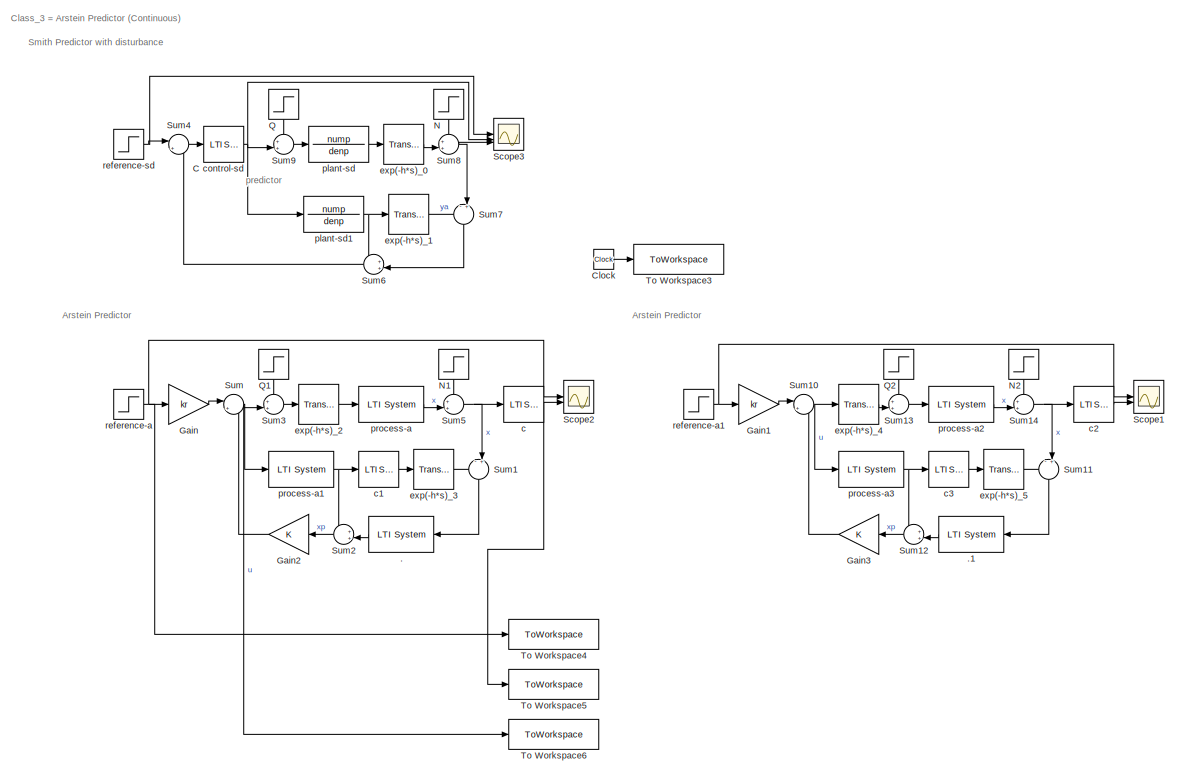
[diagram: root canvas - part 1/2, full width, top band]
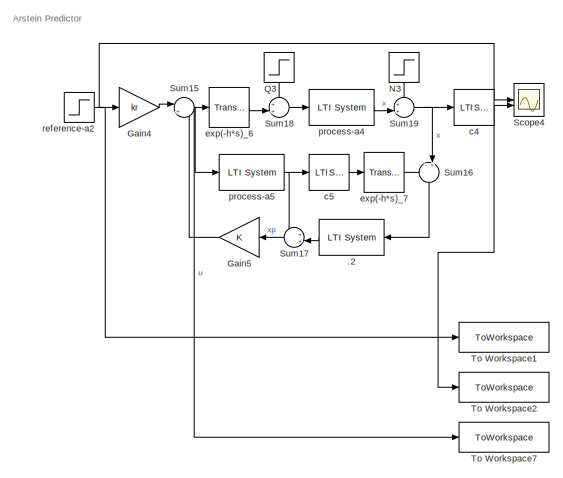
[diagram: root canvas - part 2/2, bottom left region]
MODEL slx_eae92babaa04
KIND model
CONFIG AbsTol = auto
CONFIG EnableMultiTasking = off
CONFIG FixedStep = auto
CONFIG MaxStep = auto
CONFIG MinStep = auto
CONFIG RelTol = 1e-3
CONFIG SampleTimeConstraint = Unconstrained
CONFIG SolverName = VariableStepAuto
CONFIG StartTime = 0.0
CONFIG StopTime = Tsim
BLOCK [Reference] .  REF=cstblocks/LTI System
  SourceBlock = cstblocks/LTI System
  SourceType = LTI Block
BLOCK [Reference] .1  REF=cstblocks/LTI System
  SourceBlock = cstblocks/LTI System
  SourceType = LTI Block
BLOCK [Reference] .2  REF=cstblocks/LTI System
  SourceBlock = cstblocks/LTI System
  SourceType = LTI Block
BLOCK [Reference] C control-sd  REF=cstblocks/LTI System
  SourceBlock = cstblocks/LTI System
  SourceType = LTI Block
BLOCK [Clock] Clock
BLOCK [Gain] Gain
  Gain = kr
BLOCK [Gain] Gain1
  Gain = kr
BLOCK [Gain] Gain2
  Gain = K
  NameLocation = top
BLOCK [Gain] Gain3
  Gain = K
  NameLocation = top
BLOCK [Gain] Gain4
  Gain = kr
BLOCK [Gain] Gain5
  Gain = K
  NameLocation = top
BLOCK [Step] N
  After = 0.2
  NameLocation = left
  SampleTime = 0
  Time = 20
BLOCK [Step] N1
  After = 0
  NameLocation = left
  SampleTime = 0
  Time = 0
BLOCK [Step] N2
  After = 0.2
  NameLocation = left
  SampleTime = 0
  Time = 20
BLOCK [Step] N3
  After = 0.2
  NameLocation = left
  SampleTime = 0
  Time = 20
BLOCK [Step] Q
  After = 0.2
  NameLocation = left
  SampleTime = 0
  Time = 10
BLOCK [Step] Q1
  After = 0
  NameLocation = left
  SampleTime = 0
  Time = 0
BLOCK [Step] Q2
  After = 0.2
  NameLocation = left
  SampleTime = 0
  Time = 10
BLOCK [Step] Q3
  After = 0.2
  NameLocation = left
  SampleTime = 0
  Time = 10
BLOCK [Scope] Scope1
  Floating = off
  NumInputPorts = 2
  ScopeSpecificationString = Simulink.scopes.TimeScopeBlockCfg('CurrentConfiguration', extmgr.ConfigurationSet(extmgr.Configuration('Core','General UI',true,'FigureColor',[1 1 1]),extmgr.Configuration('Core','Source UI',true),extmgr.Configuration('Sources','WiredSimulink',true),extmgr.Configuration('Visuals','Time Domain',true,'SerializedDisplays',{struct('MinYLimReal','-0.14829','MaxYLimReal','1.33465','YLabelReal','','MinYL...<+1820ch>
BLOCK [Scope] Scope2
  Floating = off
  NumInputPorts = 2
  ScopeSpecificationString = Simulink.scopes.TimeScopeBlockCfg('CurrentConfiguration', extmgr.ConfigurationSet(extmgr.Configuration('Core','General UI',true,'FigureColor',[1 1 1]),extmgr.Configuration('Core','Source UI',true),extmgr.Configuration('Sources','WiredSimulink',true,'DataLoggingVariableName','ScopeData1'),extmgr.Configuration('Visuals','Time Domain',true,'SerializedDisplays',{struct('MinYLimReal','-0.19543','MaxYLi...<+1851ch>
BLOCK [Scope] Scope3
  Floating = off
  NumInputPorts = 3
  ScopeSpecificationString = Simulink.scopes.TimeScopeBlockCfg('CurrentConfiguration', extmgr.ConfigurationSet(extmgr.Configuration('Core','General UI',true,'FigureColor',[1 1 1]),extmgr.Configuration('Core','Source UI',true),extmgr.Configuration('Sources','WiredSimulink',true,'DataLoggingVariableName','ScopeData1'),extmgr.Configuration('Visuals','Time Domain',true,'SerializedDisplays',{struct('MinYLimReal','-1.53069','MaxYLi...<+1874ch>
BLOCK [Scope] Scope4
  Floating = off
  NumInputPorts = 2
  ScopeSpecificationString = Simulink.scopes.TimeScopeBlockCfg('CurrentConfiguration', extmgr.ConfigurationSet(extmgr.Configuration('Core','General UI',true,'FigureColor',[1 1 1]),extmgr.Configuration('Core','Source UI',true),extmgr.Configuration('Sources','WiredSimulink',true,'DataLoggingVariableName','ScopeData1'),extmgr.Configuration('Visuals','Time Domain',true,'SerializedDisplays',{struct('MinYLimReal','-0.19543','MaxYLi...<+1851ch>
BLOCK [Sum] Sum
  Inputs = |+-
BLOCK [Sum] Sum1
  Inputs = -+|
  NameLocation = left
BLOCK [Sum] Sum10
  Inputs = |+-
BLOCK [Sum] Sum11
  Inputs = -+|
  NameLocation = left
BLOCK [Sum] Sum12
  Inputs = ++|
  NameLocation = top
BLOCK [Sum] Sum13
  Inputs = ++|
BLOCK [Sum] Sum14
  Inputs = ++|
BLOCK [Sum] Sum15
  Inputs = |+-
BLOCK [Sum] Sum16
  Inputs = -+|
  NameLocation = left
BLOCK [Sum] Sum17
  Inputs = ++|
  NameLocation = top
BLOCK [Sum] Sum18
  Inputs = ++|
BLOCK [Sum] Sum19
  Inputs = ++|
BLOCK [Sum] Sum2
  Inputs = ++|
  NameLocation = top
BLOCK [Sum] Sum3
  Inputs = ++|
BLOCK [Sum] Sum4
  Inputs = |+-
BLOCK [Sum] Sum5
  Inputs = ++|
BLOCK [Sum] Sum6
  Inputs = ++|
  NameLocation = top
BLOCK [Sum] Sum7
  Inputs = -+|
  NameLocation = left
BLOCK [Sum] Sum8
  Inputs = ++|
BLOCK [Sum] Sum9
  Inputs = ++|
BLOCK [ToWorkspace] To Workspace1
  FixptAsFi = on
  MaxDataPoints = inf
  SampleTime = -1
  VariableName = ap_u1
BLOCK [ToWorkspace] To Workspace2
  FixptAsFi = on
  MaxDataPoints = inf
  SampleTime = -1
  VariableName = ap_y1
BLOCK [ToWorkspace] To Workspace3
  FixptAsFi = on
  MaxDataPoints = inf
  SampleTime = -1
  VariableName = ap_time
BLOCK [ToWorkspace] To Workspace4
  FixptAsFi = on
  MaxDataPoints = inf
  SampleTime = -1
  VariableName = ap_u
BLOCK [ToWorkspace] To Workspace5
  FixptAsFi = on
  MaxDataPoints = inf
  SampleTime = -1
  VariableName = ap_y
BLOCK [ToWorkspace] To Workspace6
  FixptAsFi = on
  MaxDataPoints = inf
  SampleTime = -1
  VariableName = ap_c
BLOCK [ToWorkspace] To Workspace7
  FixptAsFi = on
  MaxDataPoints = inf
  SampleTime = -1
  VariableName = ap_c1
BLOCK [Reference] c  REF=cstblocks/LTI System
  SourceBlock = cstblocks/LTI System
  SourceType = LTI Block
BLOCK [Reference] c1  REF=cstblocks/LTI System
  SourceBlock = cstblocks/LTI System
  SourceType = LTI Block
BLOCK [Reference] c2  REF=cstblocks/LTI System
  SourceBlock = cstblocks/LTI System
  SourceType = LTI Block
BLOCK [Reference] c3  REF=cstblocks/LTI System
  SourceBlock = cstblocks/LTI System
  SourceType = LTI Block
BLOCK [Reference] c4  REF=cstblocks/LTI System
  SourceBlock = cstblocks/LTI System
  SourceType = LTI Block
BLOCK [Reference] c5  REF=cstblocks/LTI System
  SourceBlock = cstblocks/LTI System
  SourceType = LTI Block
BLOCK [TransportDelay] exp(-h*s)_0
  DelayTime = h
BLOCK [TransportDelay] exp(-h*s)_1
  DelayTime = h
BLOCK [TransportDelay] exp(-h*s)_2
  DelayTime = h
BLOCK [TransportDelay] exp(-h*s)_3
  DelayTime = h
BLOCK [TransportDelay] exp(-h*s)_4
  DelayTime = h
BLOCK [TransportDelay] exp(-h*s)_5
  DelayTime = h
BLOCK [TransportDelay] exp(-h*s)_6
  DelayTime = h
BLOCK [TransportDelay] exp(-h*s)_7
  DelayTime = h
BLOCK [TransferFcn] plant-sd
  Denominator = denp
  Numerator = nump
BLOCK [TransferFcn] plant-sd1
  Denominator = denp
  Numerator = nump
BLOCK [Reference] process-a  REF=cstblocks/LTI System
  SourceBlock = cstblocks/LTI System
  SourceType = LTI Block
BLOCK [Reference] process-a1  REF=cstblocks/LTI System
  SourceBlock = cstblocks/LTI System
  SourceType = LTI Block
BLOCK [Reference] process-a2  REF=cstblocks/LTI System
  SourceBlock = cstblocks/LTI System
  SourceType = LTI Block
BLOCK [Reference] process-a3  REF=cstblocks/LTI System
  SourceBlock = cstblocks/LTI System
  SourceType = LTI Block
BLOCK [Reference] process-a4  REF=cstblocks/LTI System
  SourceBlock = cstblocks/LTI System
  SourceType = LTI Block
BLOCK [Reference] process-a5  REF=cstblocks/LTI System
  SourceBlock = cstblocks/LTI System
  SourceType = LTI Block
BLOCK [Step] reference-a
  SampleTime = 0
  Time = 0
BLOCK [Step] reference-a1
  SampleTime = 0
  Time = 0
BLOCK [Step] reference-a2
  SampleTime = 0
  Time = 0
BLOCK [Step] reference-sd
  SampleTime = 0
  Time = 0
ANNOTATION (root): Arstein Predictor
ANNOTATION (root): Class_3 = Arstein Predictor (Continuous)
ANNOTATION (root): Smith Predictor with disturbance
ANNOTATION (root): predictor
LINE .1:1 -> Sum12:2
LINE .2:1 -> Sum17:2
LINE .:1 -> Sum2:2
NET C control-sd:1 -> Scope3:2, Sum9:2, plant-sd1:1
LINE Clock:1 -> To Workspace3:1
LINE Gain1:1 -> Sum10:1
LINE Gain2:1 -> Sum:2
LINE Gain3:1 -> Sum10:2
LINE Gain4:1 -> Sum15:1
LINE Gain5:1 -> Sum15:2
LINE Gain:1 -> Sum:1
LINE N1:1 -> Sum5:1
LINE N2:1 -> Sum14:1
LINE N3:1 -> Sum19:1
LINE N:1 -> Sum8:1
LINE Q1:1 -> Sum3:1
LINE Q2:1 -> Sum13:1
LINE Q3:1 -> Sum18:1
LINE Q:1 -> Sum9:1
NET Sum10:1 -> exp(-h*s)_4:1, process-a3:1
LINE Sum11:1 -> .1:1
LINE Sum12:1 -> Gain3:1
LINE Sum13:1 -> process-a2:1
NET Sum14:1 -> Sum11:2, c2:1
NET Sum15:1 -> To Workspace7:1, exp(-h*s)_6:1, process-a5:1
LINE Sum16:1 -> .2:1
LINE Sum17:1 -> Gain5:1
LINE Sum18:1 -> process-a4:1
NET Sum19:1 -> Sum16:2, c4:1
LINE Sum1:1 -> .:1
LINE Sum2:1 -> Gain2:1
LINE Sum3:1 -> exp(-h*s)_2:1
LINE Sum4:1 -> C control-sd:1
NET Sum5:1 -> Sum1:2, c:1
LINE Sum6:1 -> Sum4:2
LINE Sum7:1 -> Sum6:2
NET Sum8:1 -> Scope3:3, Sum7:2
LINE Sum9:1 -> plant-sd:1
NET Sum:1 -> Sum3:2, To Workspace6:1, process-a1:1
LINE c1:1 -> exp(-h*s)_3:1
LINE c2:1 -> Scope1:2
LINE c3:1 -> exp(-h*s)_5:1
NET c4:1 -> Scope4:2, To Workspace2:1
LINE c5:1 -> exp(-h*s)_7:1
NET c:1 -> Scope2:2, To Workspace5:1
LINE exp(-h*s)_0:1 -> Sum8:2
LINE exp(-h*s)_1:1 -> Sum7:1
LINE exp(-h*s)_2:1 -> process-a:1
LINE exp(-h*s)_3:1 -> Sum1:1
LINE exp(-h*s)_4:1 -> Sum13:2
LINE exp(-h*s)_5:1 -> Sum11:1
LINE exp(-h*s)_6:1 -> Sum18:2
LINE exp(-h*s)_7:1 -> Sum16:1
NET plant-sd1:1 -> Sum6:1, exp(-h*s)_1:1
LINE plant-sd:1 -> exp(-h*s)_0:1
NET process-a1:1 -> Sum2:1, c1:1
LINE process-a2:1 -> Sum14:2
NET process-a3:1 -> Sum12:1, c3:1
LINE process-a4:1 -> Sum19:2
NET process-a5:1 -> Sum17:1, c5:1
LINE process-a:1 -> Sum5:2
NET reference-a1:1 -> Gain1:1, Scope1:1
NET reference-a2:1 -> Gain4:1, Scope4:1, To Workspace1:1
NET reference-a:1 -> Gain:1, Scope2:1, To Workspace4:1
NET reference-sd:1 -> Scope3:1, Sum4:1
note: NET lines group one-source signal fan-out (src -> all destinations, sorted); 1:1 wires keep LINE
